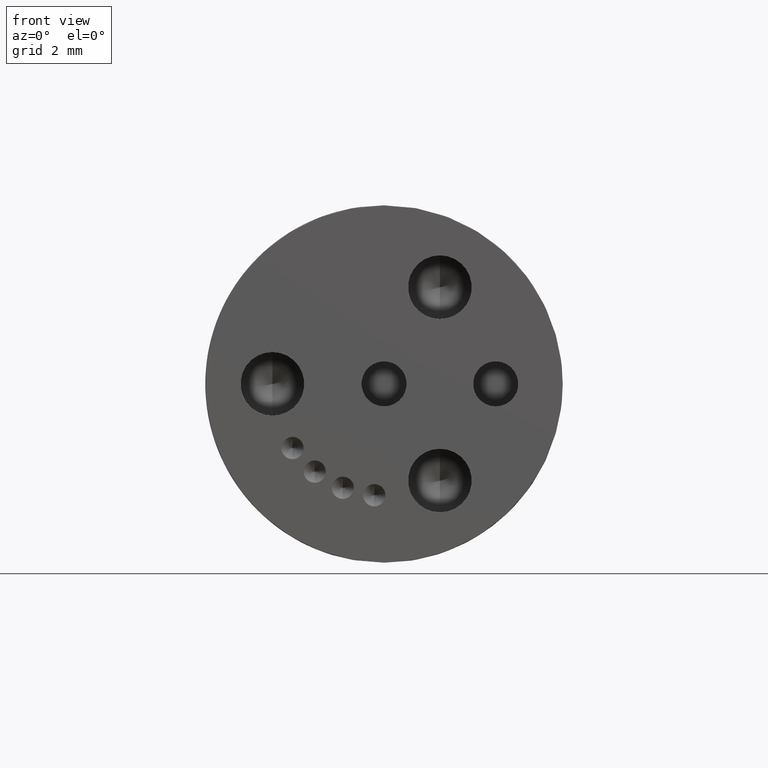
[diagram: clean part render]
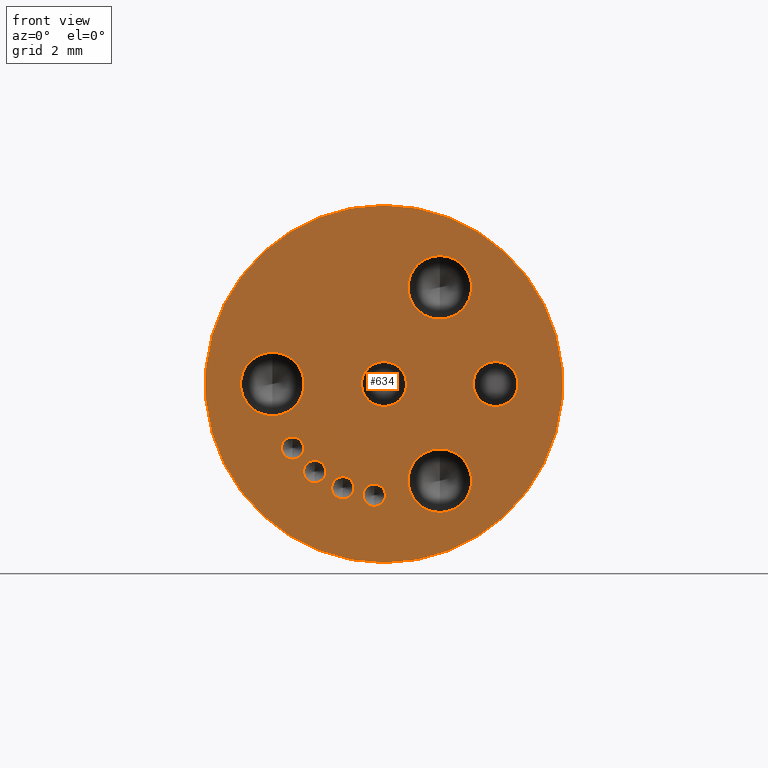
[diagram: same view with one face highlighted and labeled with its STEP entity id]
A machine part, front view. The second image highlights one B-rep face of the part: STEP entity #634.
In plain terms, the highlighted planar face has unit normal (0, 1, 0).
Its self-contained STEP definition (entity closure, byte-faithful):
#46 = ORIENTED_EDGE ( 'NONE', *, *, #1416, .F. ) ;
#64 = EDGE_CURVE ( 'NONE', #3063, #2583, #762, .T. ) ;
#175 = EDGE_CURVE ( 'NONE', #2583, #3063, #5492, .T. ) ;
#219 = CARTESIAN_POINT ( 'NONE',  ( -0.1045252467944912400, -0.3858196174343081500, -0.1369366158887365400 ) ) ;
#254 = EDGE_LOOP ( 'NONE', ( #4494, #3024 ) ) ;
#380 = AXIS2_PLACEMENT_3D ( 'NONE', #5426, #2742, #5971 ) ;
#454 = DIRECTION ( 'NONE',  ( -0.0000000000000000000, -1.000000000000000000, -0.0000000000000000000 ) ) ;
#456 = VERTEX_POINT ( 'NONE', #1544 ) ;
#479 = CIRCLE ( 'NONE', #4602, 0.01562500000000000300 ) ;
#507 = CARTESIAN_POINT ( 'NONE',  ( -0.007620581987438816000, -0.3858196174343081500, -0.02999103035275719000 ) ) ;
#542 = ORIENTED_EDGE ( 'NONE', *, *, #64, .F. ) ;
#547 = CIRCLE ( 'NONE', #3647, 0.01562500000000000300 ) ;
#566 = CARTESIAN_POINT ( 'NONE',  ( -0.1356130889075943000, -0.3858196174343081500, -0.1352373485326074900 ) ) ;
#608 = CARTESIAN_POINT ( 'NONE',  ( -0.06529214609979201700, -0.3858196174343081500, -0.1752082923873884400 ) ) ;
#634 = ADVANCED_FACE ( 'NONE', ( #4629, #3433, #2187, #1112, #2324, #5865, #3694, #5047, #946, #5734 ), #4291, .F. ) ;
#650 = DIRECTION ( 'NONE',  ( 0.0000000000000000000, -1.000000000000000000, 0.0000000000000000000 ) ) ;
#671 = DIRECTION ( 'NONE',  ( 0.0000000000000000000, -1.000000000000000000, 0.0000000000000000000 ) ) ;
#727 = EDGE_CURVE ( 'NONE', #5063, #2137, #809, .T. ) ;
#748 = CARTESIAN_POINT ( 'NONE',  ( -0.1638705819874388100, -0.3858196174343081500, -0.07449103035275717000 ) ) ;
#762 = CIRCLE ( 'NONE', #4673, 0.03150000000000000000 ) ;
#809 = CIRCLE ( 'NONE', #4561, 0.01562500000000000300 ) ;
#865 = CARTESIAN_POINT ( 'NONE',  ( 0.1486294180125611900, -0.3858196174343081500, -0.02999103035275719000 ) ) ;
#874 = CARTESIAN_POINT ( 'NONE',  ( -0.02121149958843368500, -0.3858196174343081500, -0.1856488263629891000 ) ) ;
#946 = FACE_BOUND ( 'NONE', #5228, .T. ) ;
#982 = DIRECTION ( 'NONE',  ( 0.0000000000000000000, 0.0000000000000000000, 1.000000000000000000 ) ) ;
#1034 = EDGE_CURVE ( 'NONE', #3832, #1631, #4850, .T. ) ;
#1046 = AXIS2_PLACEMENT_3D ( 'NONE', #3911, #1136, #4372 ) ;
#1073 = CARTESIAN_POINT ( 'NONE',  ( 0.07050441801256185400, -0.3858196174343081500, 0.1053254389885609800 ) ) ;
#1085 = DIRECTION ( 'NONE',  ( 0.0000000000000000000, 0.0000000000000000000, -1.000000000000000000 ) ) ;
#1086 = CIRCLE ( 'NONE', #2672, 0.04449999999999997700 ) ;
#1112 = FACE_BOUND ( 'NONE', #5346, .T. ) ;
#1123 = EDGE_CURVE ( 'NONE', #3558, #2432, #3506, .T. ) ;
#1136 = DIRECTION ( 'NONE',  ( 0.0000000000000000000, -1.000000000000000000, 0.0000000000000000000 ) ) ;
#1182 = AXIS2_PLACEMENT_3D ( 'NONE', #5443, #2688, #5917 ) ;
#1329 = DIRECTION ( 'NONE',  ( 0.0000000000000000000, 0.0000000000000000000, -1.000000000000000000 ) ) ;
#1335 = DIRECTION ( 'NONE',  ( 0.0000000000000000000, 0.0000000000000000000, -1.000000000000000000 ) ) ;
#1415 = DIRECTION ( 'NONE',  ( 0.0000000000000000000, 1.000000000000000000, 0.0000000000000000000 ) ) ;
#1416 = EDGE_CURVE ( 'NONE', #2432, #3558, #4427, .T. ) ;
#1425 = CIRCLE ( 'NONE', #380, 0.01562500000000000300 ) ;
#1514 = CARTESIAN_POINT ( 'NONE',  ( -0.007620581987438816000, -0.3858196174343081500, -0.02999103035275719000 ) ) ;
#1519 = DIRECTION ( 'NONE',  ( 0.0000000000000000000, -1.000000000000000000, 0.0000000000000000000 ) ) ;
#1535 = DIRECTION ( 'NONE',  ( 0.0000000000000000000, 0.0000000000000000000, -1.000000000000000000 ) ) ;
#1544 = CARTESIAN_POINT ( 'NONE',  ( -0.007620581987438816000, -0.3858196174343081500, -0.2799910303527571900 ) ) ;
#1631 = VERTEX_POINT ( 'NONE', #5480 ) ;
#1785 = CIRCLE ( 'NONE', #1942, 0.04449999999999996300 ) ;
#1786 = CIRCLE ( 'NONE', #4816, 0.03150000000000000700 ) ;
#1797 = CARTESIAN_POINT ( 'NONE',  ( -0.007620581987438811700, -0.3858196174343081500, 0.001508969647242812100 ) ) ;
#1809 = EDGE_CURVE ( 'NONE', #456, #5722, #1945, .T. ) ;
#1872 = ORIENTED_EDGE ( 'NONE', *, *, #5943, .F. ) ;
#1916 = CARTESIAN_POINT ( 'NONE',  ( -0.1638705819874388100, -0.3858196174343081500, -0.02999103035275719000 ) ) ;
#1942 = AXIS2_PLACEMENT_3D ( 'NONE', #5420, #2660, #5888 ) ;
#1945 = CIRCLE ( 'NONE', #3718, 0.2500000000000000000 ) ;
#1980 = DIRECTION ( 'NONE',  ( 0.0000000000000000000, -0.0000000000000000000, 1.000000000000000000 ) ) ;
#2002 = ORIENTED_EDGE ( 'NONE', *, *, #175, .F. ) ;
#2107 = EDGE_LOOP ( 'NONE', ( #5660, #4358 ) ) ;
#2128 = CARTESIAN_POINT ( 'NONE',  ( 0.07050441801256186700, -0.3858196174343081500, 0.1498254389885609600 ) ) ;
#2137 = VERTEX_POINT ( 'NONE', #566 ) ;
#2187 = FACE_BOUND ( 'NONE', #4782, .T. ) ;
#2199 = ORIENTED_EDGE ( 'NONE', *, *, #4498, .F. ) ;
#2230 = CIRCLE ( 'NONE', #4190, 0.2500000000000000000 ) ;
#2320 = EDGE_CURVE ( 'NONE', #5942, #5160, #1086, .T. ) ;
#2324 = FACE_BOUND ( 'NONE', #5760, .T. ) ;
#2337 = ORIENTED_EDGE ( 'NONE', *, *, #5642, .F. ) ;
#2386 = DIRECTION ( 'NONE',  ( 0.0000000000000000000, 0.0000000000000000000, -1.000000000000000000 ) ) ;
#2408 = DIRECTION ( 'NONE',  ( 0.0000000000000000000, -1.000000000000000000, 0.0000000000000000000 ) ) ;
#2420 = DIRECTION ( 'NONE',  ( 0.0000000000000000000, -1.000000000000000000, 0.0000000000000000000 ) ) ;
#2432 = VERTEX_POINT ( 'NONE', #5754 ) ;
#2495 = DIRECTION ( 'NONE',  ( -0.0000000000000000000, -1.000000000000000000, -0.0000000000000000000 ) ) ;
#2509 = VERTEX_POINT ( 'NONE', #4035 ) ;
#2514 = EDGE_LOOP ( 'NONE', ( #4956, #3071 ) ) ;
#2557 = EDGE_CURVE ( 'NONE', #1631, #3832, #5103, .T. ) ;
#2583 = VERTEX_POINT ( 'NONE', #1797 ) ;
#2603 = CARTESIAN_POINT ( 'NONE',  ( -0.007620581987438816000, -0.3858196174343081500, -0.06149103035275718700 ) ) ;
#2660 = DIRECTION ( 'NONE',  ( -0.0000000000000000000, -1.000000000000000000, -0.0000000000000000000 ) ) ;
#2672 = AXIS2_PLACEMENT_3D ( 'NONE', #1073, #4312, #1535 ) ;
#2684 = CARTESIAN_POINT ( 'NONE',  ( -0.007620581987438816000, -0.3858196174343081500, -0.02999103035275719000 ) ) ;
#2688 = DIRECTION ( 'NONE',  ( 0.0000000000000000000, -1.000000000000000000, 0.0000000000000000000 ) ) ;
#2691 = EDGE_CURVE ( 'NONE', #2137, #5063, #1425, .T. ) ;
#2702 = DIRECTION ( 'NONE',  ( -0.0000000000000000000, -1.000000000000000000, -0.0000000000000000000 ) ) ;
#2742 = DIRECTION ( 'NONE',  ( 0.0000000000000000000, -1.000000000000000000, 0.0000000000000000000 ) ) ;
#2911 = AXIS2_PLACEMENT_3D ( 'NONE', #5240, #2495, #5723 ) ;
#2953 = CARTESIAN_POINT ( 'NONE',  ( 0.07050441801256185400, -0.3858196174343081500, 0.06082543898856099900 ) ) ;
#2986 = CARTESIAN_POINT ( 'NONE',  ( 0.07050441801255991100, -0.3858196174343081500, -0.2098074996940764400 ) ) ;
#3024 = ORIENTED_EDGE ( 'NONE', *, *, #727, .F. ) ;
#3063 = VERTEX_POINT ( 'NONE', #2603 ) ;
#3071 = ORIENTED_EDGE ( 'NONE', *, *, #2557, .F. ) ;
#3084 = EDGE_CURVE ( 'NONE', #4379, #3992, #1785, .T. ) ;
#3092 = CARTESIAN_POINT ( 'NONE',  ( -0.06529214609979201700, -0.3858196174343081500, -0.1595832923873884700 ) ) ;
#3149 = EDGE_LOOP ( 'NONE', ( #542, #2002 ) ) ;
#3150 = DIRECTION ( 'NONE',  ( 0.0000000000000000000, 0.0000000000000000000, -1.000000000000000000 ) ) ;
#3233 = EDGE_CURVE ( 'NONE', #5160, #5942, #5173, .T. ) ;
#3247 = CARTESIAN_POINT ( 'NONE',  ( 0.07050441801256185400, -0.3858196174343081500, 0.1053254389885609800 ) ) ;
#3433 = FACE_BOUND ( 'NONE', #254, .T. ) ;
#3439 = CARTESIAN_POINT ( 'NONE',  ( -0.1045252467944912400, -0.3858196174343081500, -0.1525616158887365700 ) ) ;
#3458 = CARTESIAN_POINT ( 'NONE',  ( 0.1486294180125611900, -0.3858196174343081500, -0.02999103035275719000 ) ) ;
#3506 = CIRCLE ( 'NONE', #2911, 0.04449999999999997700 ) ;
#3527 = ORIENTED_EDGE ( 'NONE', *, *, #4055, .F. ) ;
#3536 = ORIENTED_EDGE ( 'NONE', *, *, #4705, .F. ) ;
#3558 = VERTEX_POINT ( 'NONE', #748 ) ;
#3583 = CARTESIAN_POINT ( 'NONE',  ( 0.1486294180125611900, -0.3858196174343081500, -0.06149103035275720100 ) ) ;
#3647 = AXIS2_PLACEMENT_3D ( 'NONE', #3439, #650, #3887 ) ;
#3686 = ORIENTED_EDGE ( 'NONE', *, *, #1123, .F. ) ;
#3694 = FACE_BOUND ( 'NONE', #3878, .T. ) ;
#3706 = DIRECTION ( 'NONE',  ( 0.0000000000000000000, 0.0000000000000000000, -1.000000000000000000 ) ) ;
#3718 = AXIS2_PLACEMENT_3D ( 'NONE', #507, #3754, #982 ) ;
#3754 = DIRECTION ( 'NONE',  ( 0.0000000000000000000, 1.000000000000000000, 0.0000000000000000000 ) ) ;
#3800 = AXIS2_PLACEMENT_3D ( 'NONE', #3247, #454, #3706 ) ;
#3832 = VERTEX_POINT ( 'NONE', #5808 ) ;
#3849 = DIRECTION ( 'NONE',  ( 0.0000000000000000000, -1.000000000000000000, 0.0000000000000000000 ) ) ;
#3878 = EDGE_LOOP ( 'NONE', ( #3686, #46 ) ) ;
#3887 = DIRECTION ( 'NONE',  ( 0.0000000000000000000, 0.0000000000000000000, -1.000000000000000000 ) ) ;
#3894 = CARTESIAN_POINT ( 'NONE',  ( -0.1045252467944912400, -0.3858196174343081500, -0.1681866158887365700 ) ) ;
#3906 = ORIENTED_EDGE ( 'NONE', *, *, #3233, .F. ) ;
#3911 = CARTESIAN_POINT ( 'NONE',  ( -0.02121149958843368500, -0.3858196174343081500, -0.1856488263629891000 ) ) ;
#3914 = DIRECTION ( 'NONE',  ( 0.0000000000000000000, 0.0000000000000000000, -1.000000000000000000 ) ) ;
#3962 = AXIS2_PLACEMENT_3D ( 'NONE', #1514, #4743, #1980 ) ;
#3992 = VERTEX_POINT ( 'NONE', #4212 ) ;
#4035 = CARTESIAN_POINT ( 'NONE',  ( -0.06529214609979201700, -0.3858196174343081500, -0.1908332923873884400 ) ) ;
#4044 = CIRCLE ( 'NONE', #5528, 0.01562499999999998800 ) ;
#4055 = EDGE_CURVE ( 'NONE', #4370, #5035, #479, .T. ) ;
#4081 = EDGE_CURVE ( 'NONE', #4663, #2509, #4044, .T. ) ;
#4099 = DIRECTION ( 'NONE',  ( 0.0000000000000000000, -1.000000000000000000, 0.0000000000000000000 ) ) ;
#4108 = DIRECTION ( 'NONE',  ( 0.0000000000000000000, -1.000000000000000000, 0.0000000000000000000 ) ) ;
#4190 = AXIS2_PLACEMENT_3D ( 'NONE', #4196, #1415, #4647 ) ;
#4196 = CARTESIAN_POINT ( 'NONE',  ( -0.007620581987438816000, -0.3858196174343081500, -0.02999103035275719000 ) ) ;
#4212 = CARTESIAN_POINT ( 'NONE',  ( 0.07050441801255991100, -0.3858196174343081500, -0.1208074996940765000 ) ) ;
#4278 = AXIS2_PLACEMENT_3D ( 'NONE', #3458, #671, #3914 ) ;
#4291 = PLANE ( 'NONE',  #3962 ) ;
#4295 = CARTESIAN_POINT ( 'NONE',  ( -0.1045252467944912400, -0.3858196174343081500, -0.1525616158887365700 ) ) ;
#4312 = DIRECTION ( 'NONE',  ( -0.0000000000000000000, -1.000000000000000000, -0.0000000000000000000 ) ) ;
#4358 = ORIENTED_EDGE ( 'NONE', *, *, #4693, .F. ) ;
#4370 = VERTEX_POINT ( 'NONE', #219 ) ;
#4372 = DIRECTION ( 'NONE',  ( 0.0000000000000000000, 0.0000000000000000000, -1.000000000000000000 ) ) ;
#4379 = VERTEX_POINT ( 'NONE', #2986 ) ;
#4427 = CIRCLE ( 'NONE', #5694, 0.04449999999999997700 ) ;
#4446 = EDGE_LOOP ( 'NONE', ( #5820, #2199 ) ) ;
#4494 = ORIENTED_EDGE ( 'NONE', *, *, #2691, .F. ) ;
#4498 = EDGE_CURVE ( 'NONE', #5722, #456, #2230, .T. ) ;
#4561 = AXIS2_PLACEMENT_3D ( 'NONE', #5158, #2408, #5636 ) ;
#4602 = AXIS2_PLACEMENT_3D ( 'NONE', #4295, #1519, #4749 ) ;
#4629 = FACE_BOUND ( 'NONE', #2514, .T. ) ;
#4647 = DIRECTION ( 'NONE',  ( 0.0000000000000000000, 0.0000000000000000000, 1.000000000000000000 ) ) ;
#4663 = VERTEX_POINT ( 'NONE', #3092 ) ;
#4665 = VERTEX_POINT ( 'NONE', #5916 ) ;
#4673 = AXIS2_PLACEMENT_3D ( 'NONE', #2684, #5914, #3150 ) ;
#4693 = EDGE_CURVE ( 'NONE', #3992, #4379, #5333, .T. ) ;
#4705 = EDGE_CURVE ( 'NONE', #4665, #5222, #1786, .T. ) ;
#4743 = DIRECTION ( 'NONE',  ( 0.0000000000000000000, 1.000000000000000000, 0.0000000000000000000 ) ) ;
#4749 = DIRECTION ( 'NONE',  ( 0.0000000000000000000, 0.0000000000000000000, -1.000000000000000000 ) ) ;
#4782 = EDGE_LOOP ( 'NONE', ( #5700, #3527 ) ) ;
#4816 = AXIS2_PLACEMENT_3D ( 'NONE', #865, #4099, #1329 ) ;
#4850 = CIRCLE ( 'NONE', #1046, 0.01562499999999998800 ) ;
#4956 = ORIENTED_EDGE ( 'NONE', *, *, #1034, .F. ) ;
#4960 = CIRCLE ( 'NONE', #1182, 0.01562499999999998800 ) ;
#5035 = VERTEX_POINT ( 'NONE', #3894 ) ;
#5047 = FACE_BOUND ( 'NONE', #2107, .T. ) ;
#5063 = VERTEX_POINT ( 'NONE', #5744 ) ;
#5101 = AXIS2_PLACEMENT_3D ( 'NONE', #5461, #2702, #5935 ) ;
#5103 = CIRCLE ( 'NONE', #5445, 0.01562499999999998800 ) ;
#5135 = DIRECTION ( 'NONE',  ( -0.0000000000000000000, -1.000000000000000000, -0.0000000000000000000 ) ) ;
#5156 = ORIENTED_EDGE ( 'NONE', *, *, #4081, .F. ) ;
#5158 = CARTESIAN_POINT ( 'NONE',  ( -0.1356130889075943000, -0.3858196174343081500, -0.1196123485326074800 ) ) ;
#5160 = VERTEX_POINT ( 'NONE', #2128 ) ;
#5168 = CARTESIAN_POINT ( 'NONE',  ( -0.007620581987438816000, -0.3858196174343081500, -0.02999103035275719000 ) ) ;
#5173 = CIRCLE ( 'NONE', #3800, 0.04449999999999997700 ) ;
#5222 = VERTEX_POINT ( 'NONE', #3583 ) ;
#5228 = EDGE_LOOP ( 'NONE', ( #5321, #3906 ) ) ;
#5240 = CARTESIAN_POINT ( 'NONE',  ( -0.1638705819874388100, -0.3858196174343081500, -0.02999103035275719000 ) ) ;
#5321 = ORIENTED_EDGE ( 'NONE', *, *, #2320, .F. ) ;
#5324 = CIRCLE ( 'NONE', #4278, 0.03150000000000000700 ) ;
#5333 = CIRCLE ( 'NONE', #5101, 0.04449999999999996300 ) ;
#5346 = EDGE_LOOP ( 'NONE', ( #2337, #5156 ) ) ;
#5420 = CARTESIAN_POINT ( 'NONE',  ( 0.07050441801255991100, -0.3858196174343081500, -0.1653074996940764900 ) ) ;
#5426 = CARTESIAN_POINT ( 'NONE',  ( -0.1356130889075943000, -0.3858196174343081500, -0.1196123485326074800 ) ) ;
#5443 = CARTESIAN_POINT ( 'NONE',  ( -0.06529214609979201700, -0.3858196174343081500, -0.1752082923873884400 ) ) ;
#5445 = AXIS2_PLACEMENT_3D ( 'NONE', #874, #4108, #1335 ) ;
#5461 = CARTESIAN_POINT ( 'NONE',  ( 0.07050441801255991100, -0.3858196174343081500, -0.1653074996940764900 ) ) ;
#5480 = CARTESIAN_POINT ( 'NONE',  ( -0.02121149958843368500, -0.3858196174343081500, -0.1700238263629891300 ) ) ;
#5483 = CARTESIAN_POINT ( 'NONE',  ( -0.007620581987438784800, -0.3858196174343081500, 0.2200089696472428100 ) ) ;
#5492 = CIRCLE ( 'NONE', #5918, 0.03150000000000000000 ) ;
#5528 = AXIS2_PLACEMENT_3D ( 'NONE', #608, #3849, #1085 ) ;
#5636 = DIRECTION ( 'NONE',  ( 0.0000000000000000000, 0.0000000000000000000, -1.000000000000000000 ) ) ;
#5642 = EDGE_CURVE ( 'NONE', #2509, #4663, #4960, .T. ) ;
#5646 = DIRECTION ( 'NONE',  ( 0.0000000000000000000, 0.0000000000000000000, -1.000000000000000000 ) ) ;
#5660 = ORIENTED_EDGE ( 'NONE', *, *, #3084, .F. ) ;
#5694 = AXIS2_PLACEMENT_3D ( 'NONE', #1916, #5135, #2386 ) ;
#5700 = ORIENTED_EDGE ( 'NONE', *, *, #5903, .F. ) ;
#5722 = VERTEX_POINT ( 'NONE', #5483 ) ;
#5723 = DIRECTION ( 'NONE',  ( 0.0000000000000000000, 0.0000000000000000000, -1.000000000000000000 ) ) ;
#5734 = FACE_OUTER_BOUND ( 'NONE', #4446, .T. ) ;
#5744 = CARTESIAN_POINT ( 'NONE',  ( -0.1356130889075943000, -0.3858196174343081500, -0.1039873485326074800 ) ) ;
#5754 = CARTESIAN_POINT ( 'NONE',  ( -0.1638705819874388100, -0.3858196174343081500, 0.01450896964724279100 ) ) ;
#5760 = EDGE_LOOP ( 'NONE', ( #1872, #3536 ) ) ;
#5808 = CARTESIAN_POINT ( 'NONE',  ( -0.02121149958843368500, -0.3858196174343081500, -0.2012738263629891000 ) ) ;
#5820 = ORIENTED_EDGE ( 'NONE', *, *, #1809, .F. ) ;
#5865 = FACE_BOUND ( 'NONE', #3149, .T. ) ;
#5888 = DIRECTION ( 'NONE',  ( 0.0000000000000000000, 0.0000000000000000000, -1.000000000000000000 ) ) ;
#5903 = EDGE_CURVE ( 'NONE', #5035, #4370, #547, .T. ) ;
#5914 = DIRECTION ( 'NONE',  ( 0.0000000000000000000, -1.000000000000000000, 0.0000000000000000000 ) ) ;
#5916 = CARTESIAN_POINT ( 'NONE',  ( 0.1486294180125611900, -0.3858196174343081500, 0.001508969647242816400 ) ) ;
#5917 = DIRECTION ( 'NONE',  ( 0.0000000000000000000, 0.0000000000000000000, -1.000000000000000000 ) ) ;
#5918 = AXIS2_PLACEMENT_3D ( 'NONE', #5168, #2420, #5646 ) ;
#5935 = DIRECTION ( 'NONE',  ( 0.0000000000000000000, 0.0000000000000000000, -1.000000000000000000 ) ) ;
#5942 = VERTEX_POINT ( 'NONE', #2953 ) ;
#5943 = EDGE_CURVE ( 'NONE', #5222, #4665, #5324, .T. ) ;
#5971 = DIRECTION ( 'NONE',  ( 0.0000000000000000000, 0.0000000000000000000, -1.000000000000000000 ) ) ;